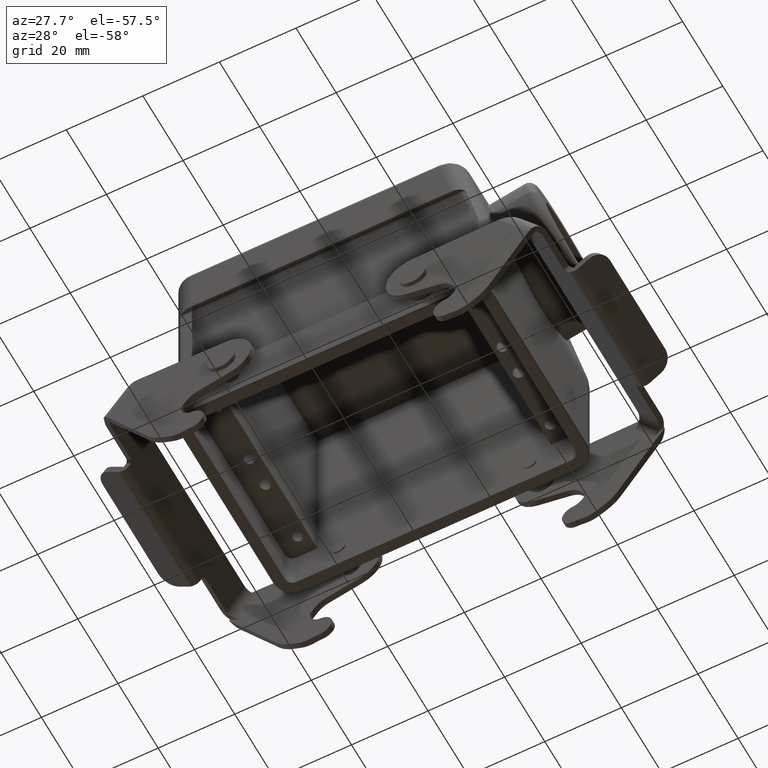
[diagram: clean part render]
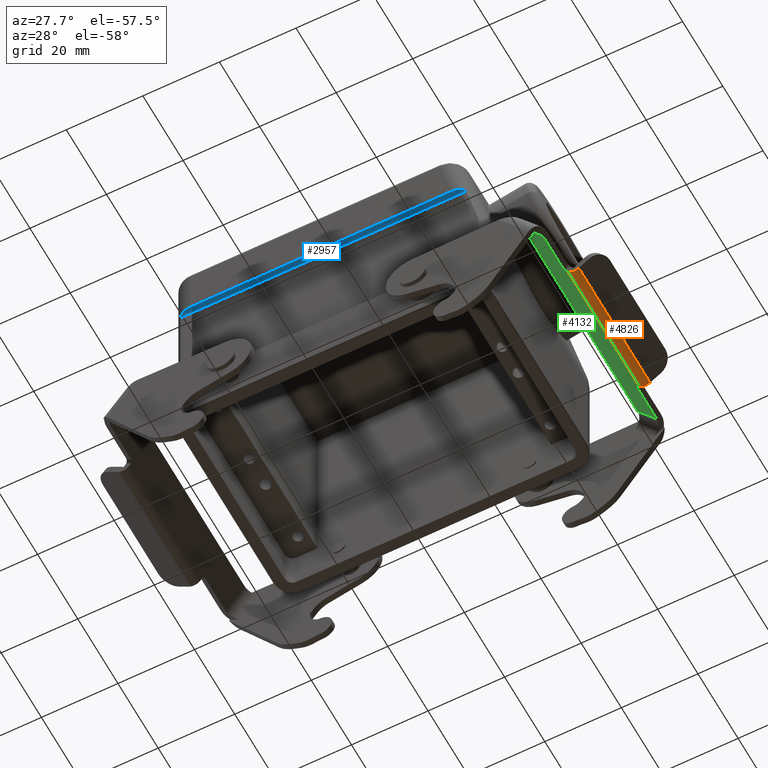
[diagram: same view with three faces highlighted in distinct colors, each labeled with its STEP entity id]
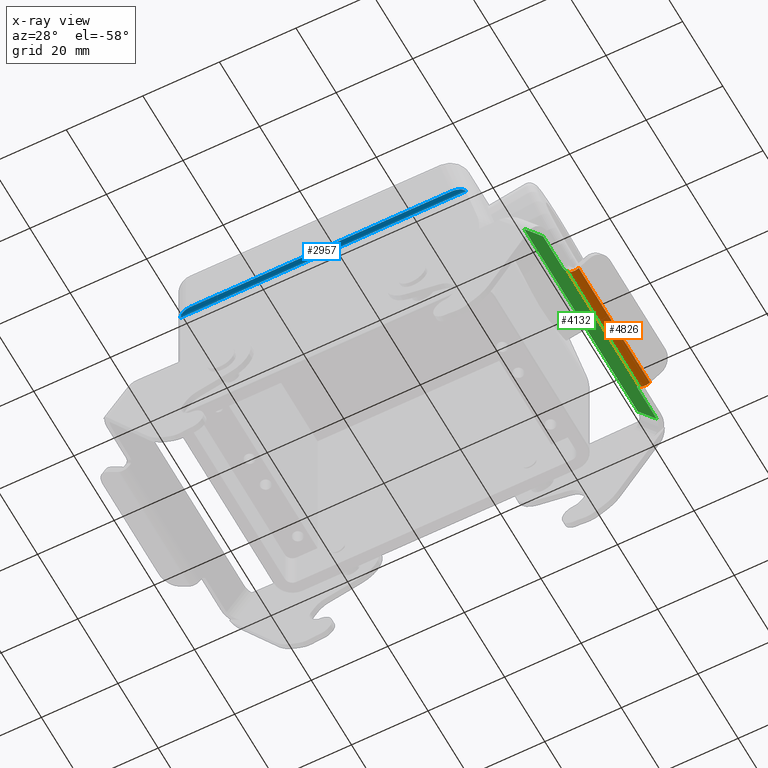
[diagram: x-ray of the same camera — body ghosted, the three highlighted faces saturated]
A machine part, auxiliary view with three faces highlighted in distinct colors.
The next image is the same camera in x-ray (body ghosted, the three faces saturated) — at least one of them is partly hidden behind the body in this view.
Their STEP definitions:

[orange] entity #4826 — the highlighted cylindrical surface (edge-blend (fillet) strip) has radius 2 mm, axis along (0, 1, 0).
#1366=CARTESIAN_POINT('',(5.898321001481E1,1.779999999999E1,7.216025083281E0));
#1367=DIRECTION('',(0.E0,1.E0,0.E0));
#1368=DIRECTION('',(5.906318661796E-1,0.E0,-8.069411370436E-1));
#1369=AXIS2_PLACEMENT_3D('',#1366,#1367,#1368);
#1404=CARTESIAN_POINT('',(5.898321001481E1,-1.769892249603E1,7.216025083281E0));
#1405=DIRECTION('',(0.E0,1.E0,0.E0));
#1406=DIRECTION('',(5.906318661796E-1,0.E0,-8.069411370436E-1));
#1407=AXIS2_PLACEMENT_3D('',#1404,#1405,#1406);
#1469=DIRECTION('',(0.E0,1.E0,0.E0));
#1470=VECTOR('',#1469,3.549892249602E1);
#1471=CARTESIAN_POINT('',(6.016447374717E1,-1.769892249603E1,5.602142809199E0));
#1472=LINE('',#1471,#1470);
#1473=DIRECTION('',(0.E0,-1.E0,0.E0));
#1474=VECTOR('',#1473,3.549892249602E1);
#1475=CARTESIAN_POINT('',(5.736932774067E1,1.779999999999E1,6.034761350931E0));
#1476=LINE('',#1475,#1474);
#2468=CARTESIAN_POINT('',(5.736932774067E1,1.779999999999E1,6.034761350931E0));
#2469=VERTEX_POINT('',#2468);
#2470=CARTESIAN_POINT('',(5.736932774067E1,-1.769892249603E1,6.034761350931E0));
#2471=VERTEX_POINT('',#2470);
#2496=CARTESIAN_POINT('',(6.016447374717E1,-1.769892249603E1,5.602142809199E0));
#2497=CARTESIAN_POINT('',(6.016447374717E1,1.779999999999E1,5.602142809199E0));
#2498=VERTEX_POINT('',#2496);
#2499=VERTEX_POINT('',#2497);
#4815=CARTESIAN_POINT('',(5.898321001481E1,-1.840890094595E1,7.216025083281E0));
#4816=DIRECTION('',(0.E0,1.E0,0.E0));
#4817=DIRECTION('',(-9.711420236530E-1,0.E0,2.385019284935E-1));
#4818=AXIS2_PLACEMENT_3D('',#4815,#4816,#4817);
#4819=CYLINDRICAL_SURFACE('',#4818,2.000000000004E0);
#4820=ORIENTED_EDGE('',*,*,#4807,.T.);
#4821=ORIENTED_EDGE('',*,*,#4685,.T.);
#4822=ORIENTED_EDGE('',*,*,#4122,.T.);
#4823=ORIENTED_EDGE('',*,*,#4751,.F.);
#4824=EDGE_LOOP('',(#4820,#4821,#4822,#4823));
#4825=FACE_OUTER_BOUND('',#4824,.F.);
#4826=ADVANCED_FACE('',(#4825),#4819,.T.);
#1370=CIRCLE('',#1369,2.000000000004E0);
#1408=CIRCLE('',#1407,2.000000000004E0);
#4122=EDGE_CURVE('',#2469,#2471,#1476,.T.);
#4685=EDGE_CURVE('',#2499,#2469,#1370,.T.);
#4751=EDGE_CURVE('',#2498,#2471,#1408,.T.);
#4807=EDGE_CURVE('',#2498,#2499,#1472,.T.);

[blue] entity #2957 — the highlighted cylindrical surface (edge-blend (fillet) strip) has radius 1 mm, axis along (1, 0, 0).
#17=CARTESIAN_POINT('',(-3.6E1,-2.8E1,4.457780157985E1));
#18=CARTESIAN_POINT('',(-3.620786945164E1,-2.8E1,4.457780157985E1));
#19=CARTESIAN_POINT('',(-3.660443251976E1,-2.797401047360E1,4.457827053944E1));
#20=CARTESIAN_POINT('',(-3.713138731333E1,-2.787914248308E1,4.457270059811E1));
#21=CARTESIAN_POINT('',(-3.759751772286E1,-2.774536922005E1,4.454885719750E1));
#22=CARTESIAN_POINT('',(-3.800399630082E1,-2.758697660655E1,4.449447179901E1));
#23=CARTESIAN_POINT('',(-3.835095313646E1,-2.741766383474E1,4.439951417629E1));
#24=CARTESIAN_POINT('',(-3.863459127992E1,-2.725295082222E1,4.425543392678E1));
#25=CARTESIAN_POINT('',(-3.884701954738E1,-2.711202211513E1,4.406073113511E1));
#26=CARTESIAN_POINT('',(-3.897529358173E1,-2.701877568645E1,4.381864249153E1));
#27=CARTESIAN_POINT('',(-3.9E1,-2.7E1,4.365958775929E1));
#28=CARTESIAN_POINT('',(-3.9E1,-2.7E1,4.357780157985E1));
#39=DIRECTION('',(1.E0,4.302176377398E-13,-2.352529478010E-14));
#40=VECTOR('',#39,7.460227698450E1);
#41=CARTESIAN_POINT('',(-3.9E1,-2.7E1,4.357780157985E1));
#42=LINE('',#41,#40);
#43=DIRECTION('',(-1.E0,0.E0,0.E0));
#44=VECTOR('',#43,6.829477169370E1);
#45=CARTESIAN_POINT('',(3.229477169370E1,-2.8E1,4.457780157985E1));
#46=LINE('',#45,#44);
#47=CARTESIAN_POINT('',(3.560227698450E1,-2.699999999997E1,4.357780157985E1));
#48=CARTESIAN_POINT('',(3.558288992930E1,-2.699999999997E1,4.366227374894E1));
#49=CARTESIAN_POINT('',(3.551618017961E1,-2.702114888408E1,4.382856100382E1));
#50=CARTESIAN_POINT('',(3.533257879306E1,-2.711321491921E1,4.406063903941E1));
#51=CARTESIAN_POINT('',(3.508064330442E1,-2.724817500596E1,4.424957628481E1));
#52=CARTESIAN_POINT('',(3.476670294292E1,-2.740839569878E1,4.439266027411E1));
#53=CARTESIAN_POINT('',(3.439455115711E1,-2.757682222616E1,4.448997362079E1));
#54=CARTESIAN_POINT('',(3.396470011289E1,-2.773761070154E1,4.454696078755E1));
#55=CARTESIAN_POINT('',(3.347548274653E1,-2.787519532703E1,4.457240580910E1));
#56=CARTESIAN_POINT('',(3.292402130247E1,-2.797324226262E1,4.457820658150E1));
#57=CARTESIAN_POINT('',(3.251179707038E1,-2.799999999999E1,4.457780157985E1));
#58=CARTESIAN_POINT('',(3.229477169370E1,-2.8E1,4.457780157985E1));
#2720=CARTESIAN_POINT('',(3.229477169370E1,-2.8E1,4.457780157985E1));
#2721=CARTESIAN_POINT('',(-3.6E1,-2.8E1,4.457780157985E1));
#2722=VERTEX_POINT('',#2720);
#2723=VERTEX_POINT('',#2721);
#2831=CARTESIAN_POINT('',(-3.9E1,-2.7E1,4.357780157985E1));
#2832=VERTEX_POINT('',#2831);
#2833=CARTESIAN_POINT('',(3.560227698450E1,-2.699999999997E1,4.357780157985E1));
#2834=VERTEX_POINT('',#2833);
#2944=CARTESIAN_POINT('',(-4.049204553969E1,-2.8E1,4.357780157985E1));
#2945=DIRECTION('',(1.E0,0.E0,0.E0));
#2946=DIRECTION('',(0.E0,1.E0,0.E0));
#2947=AXIS2_PLACEMENT_3D('',#2944,#2945,#2946);
#2948=CYLINDRICAL_SURFACE('',#2947,1.E0);
#2949=ORIENTED_EDGE('',*,*,#2930,.F.);
#2950=ORIENTED_EDGE('',*,*,#2920,.F.);
#2952=ORIENTED_EDGE('',*,*,#2951,.F.);
#2954=ORIENTED_EDGE('',*,*,#2953,.F.);
#2955=EDGE_LOOP('',(#2949,#2950,#2952,#2954));
#2956=FACE_OUTER_BOUND('',#2955,.F.);
#2957=ADVANCED_FACE('',(#2956),#2948,.F.);
#29=B_SPLINE_CURVE_WITH_KNOTS('',3,(#17,#18,#19,#20,#21,#22,#23,#24,#25,#26,#27,
#28),.UNSPECIFIED.,.F.,.F.,(4,1,1,1,1,1,1,1,1,4),(0.E0,1.111111111111E-1,
2.222222222222E-1,3.333333333333E-1,4.444444444444E-1,5.555555555556E-1,
6.666666666667E-1,7.777777777778E-1,8.888888888889E-1,1.E0),.UNSPECIFIED.);
#59=B_SPLINE_CURVE_WITH_KNOTS('',3,(#47,#48,#49,#50,#51,#52,#53,#54,#55,#56,#57,
#58),.UNSPECIFIED.,.F.,.F.,(4,1,1,1,1,1,1,1,1,4),(0.E0,1.111111111111E-1,
2.222222222222E-1,3.333333333333E-1,4.444444444444E-1,5.555555555556E-1,
6.666666666667E-1,7.777777777778E-1,8.888888888889E-1,1.E0),.UNSPECIFIED.);
#2920=EDGE_CURVE('',#2723,#2832,#29,.T.);
#2930=EDGE_CURVE('',#2832,#2834,#42,.T.);
#2951=EDGE_CURVE('',#2722,#2723,#46,.T.);
#2953=EDGE_CURVE('',#2834,#2722,#59,.T.);

[green] entity #4132 — the highlighted planar face has unit normal (0.8069, 0, 0.5906).
#945=DIRECTION('',(-1.198513524266E-13,-1.E0,-8.598988690625E-14));
#946=VECTOR('',#945,5.649892249604E1);
#947=CARTESIAN_POINT('',(5.137863887910E1,2.83E1,1.421944212859E1));
#948=LINE('',#947,#946);
#949=DIRECTION('',(-1.106950788344E-13,1.E0,-3.574216945809E-13));
#950=VECTOR('',#949,9.499999999985E0);
#951=CARTESIAN_POINT('',(5.637372963956E1,-2.819892249602E1,7.394980989843E0));
#952=LINE('',#951,#950);
#953=CARTESIAN_POINT('',(5.696436150714E1,-1.869892249603E1,6.588039850900E0));
#954=DIRECTION('',(-8.069411370377E-1,0.E0,-5.906318661876E-1));
#955=DIRECTION('',(-5.906318661876E-1,0.E0,8.069411370377E-1));
#956=AXIS2_PLACEMENT_3D('',#953,#954,#955);
#958=CARTESIAN_POINT('',(5.696436150712E1,1.879999999999E1,6.588039850881E0));
#959=DIRECTION('',(-8.069411370377E-1,0.E0,-5.906318661876E-1));
#960=DIRECTION('',(-1.397367555001E-9,-1.E0,1.909134184075E-9));
#961=AXIS2_PLACEMENT_3D('',#958,#959,#960);
#963=DIRECTION('',(-5.906318661633E-1,-3.991195645378E-12,8.069411370555E-1));
#964=VECTOR('',#963,8.457198208604E0);
#965=CARTESIAN_POINT('',(5.637372963956E1,2.830000000003E1,7.394980989838E0));
#966=LINE('',#965,#964);
#981=DIRECTION('',(4.824734764130E-11,-1.E0,-6.683682847460E-11));
#982=VECTOR('',#981,9.499999999263E0);
#983=CARTESIAN_POINT('',(5.637372963956E1,2.830000000003E1,7.394980989838E0));
#984=LINE('',#983,#982);
#1023=DIRECTION('',(5.906318661649E-1,3.340069106031E-12,-8.069411370544E-1));
#1024=VECTOR('',#1023,8.457198208604E0);
#1025=CARTESIAN_POINT('',(5.137863887909E1,-2.819892249604E1,1.421944212859E1));
#1026=LINE('',#1025,#1024);
#1362=DIRECTION('',(-5.906318662056E-1,7.513222849908E-13,8.069411370246E-1));
#1363=VECTOR('',#1362,6.856491464677E-1);
#1364=CARTESIAN_POINT('',(5.736932774067E1,1.779999999999E1,6.034761350931E0));
#1365=LINE('',#1364,#1363);
#1409=DIRECTION('',(-5.906318661930E-1,1.138932043875E-9,8.069411370338E-1));
#1410=VECTOR('',#1409,6.856491456903E-1);
#1411=CARTESIAN_POINT('',(5.736932774067E1,-1.769892249603E1,6.034761350931E0));
#1412=LINE('',#1411,#1410);
#1473=DIRECTION('',(0.E0,-1.E0,0.E0));
#1474=VECTOR('',#1473,3.549892249602E1);
#1475=CARTESIAN_POINT('',(5.736932774067E1,1.779999999999E1,6.034761350931E0));
#1476=LINE('',#1475,#1474);
#2421=CARTESIAN_POINT('',(5.637372963956E1,-2.819892249602E1,7.394980989843E0));
#2422=CARTESIAN_POINT('',(5.637372963956E1,-1.869892249603E1,7.394980989840E0));
#2423=VERTEX_POINT('',#2421);
#2424=VERTEX_POINT('',#2422);
#2456=CARTESIAN_POINT('',(5.137863887910E1,2.829999999998E1,1.421944212860E1));
#2457=VERTEX_POINT('',#2456);
#2458=CARTESIAN_POINT('',(5.137863887909E1,-2.819892249604E1,1.421944212859E1));
#2459=VERTEX_POINT('',#2458);
#2462=CARTESIAN_POINT('',(5.637372963956E1,2.830000000003E1,7.394980989838E0));
#2463=VERTEX_POINT('',#2462);
#2464=CARTESIAN_POINT('',(5.637372964002E1,1.880000000077E1,7.394980989203E0));
#2465=VERTEX_POINT('',#2464);
#2466=CARTESIAN_POINT('',(5.696436150572E1,1.779999999999E1,6.588039852790E0));
#2467=VERTEX_POINT('',#2466);
#2468=CARTESIAN_POINT('',(5.736932774067E1,1.779999999999E1,6.034761350931E0));
#2469=VERTEX_POINT('',#2468);
#2470=CARTESIAN_POINT('',(5.736932774067E1,-1.769892249603E1,6.034761350931E0));
#2471=VERTEX_POINT('',#2470);
#2472=CARTESIAN_POINT('',(5.696436150619E1,-1.769892249525E1,6.588039852160E0));
#2473=VERTEX_POINT('',#2472);
#4106=CARTESIAN_POINT('',(5.437398330987E1,5.053875198499E-2,1.012710173975E1));
#4107=DIRECTION('',(8.069411370550E-1,0.E0,5.906318661640E-1));
#4108=DIRECTION('',(-5.906318661640E-1,0.E0,8.069411370550E-1));
#4109=AXIS2_PLACEMENT_3D('',#4106,#4107,#4108);
#4110=PLANE('',#4109);
#4112=ORIENTED_EDGE('',*,*,#4111,.T.);
#4114=ORIENTED_EDGE('',*,*,#4113,.T.);
#4116=ORIENTED_EDGE('',*,*,#4115,.T.);
#4117=ORIENTED_EDGE('',*,*,#4093,.T.);
#4119=ORIENTED_EDGE('',*,*,#4118,.T.);
#4121=ORIENTED_EDGE('',*,*,#4120,.F.);
#4123=ORIENTED_EDGE('',*,*,#4122,.F.);
#4125=ORIENTED_EDGE('',*,*,#4124,.T.);
#4127=ORIENTED_EDGE('',*,*,#4126,.T.);
#4129=ORIENTED_EDGE('',*,*,#4128,.F.);
#4130=EDGE_LOOP('',(#4112,#4114,#4116,#4117,#4119,#4121,#4123,#4125,#4127,
#4129));
#4131=FACE_OUTER_BOUND('',#4130,.F.);
#4132=ADVANCED_FACE('',(#4131),#4110,.F.);
#957=CIRCLE('',#956,1.000000002343E0);
#962=CIRCLE('',#961,1.E0);
#4093=EDGE_CURVE('',#2423,#2424,#952,.T.);
#4111=EDGE_CURVE('',#2463,#2457,#966,.T.);
#4113=EDGE_CURVE('',#2457,#2459,#948,.T.);
#4115=EDGE_CURVE('',#2459,#2423,#1026,.T.);
#4118=EDGE_CURVE('',#2424,#2473,#957,.T.);
#4120=EDGE_CURVE('',#2471,#2473,#1412,.T.);
#4122=EDGE_CURVE('',#2469,#2471,#1476,.T.);
#4124=EDGE_CURVE('',#2469,#2467,#1365,.T.);
#4126=EDGE_CURVE('',#2467,#2465,#962,.T.);
#4128=EDGE_CURVE('',#2463,#2465,#984,.T.);